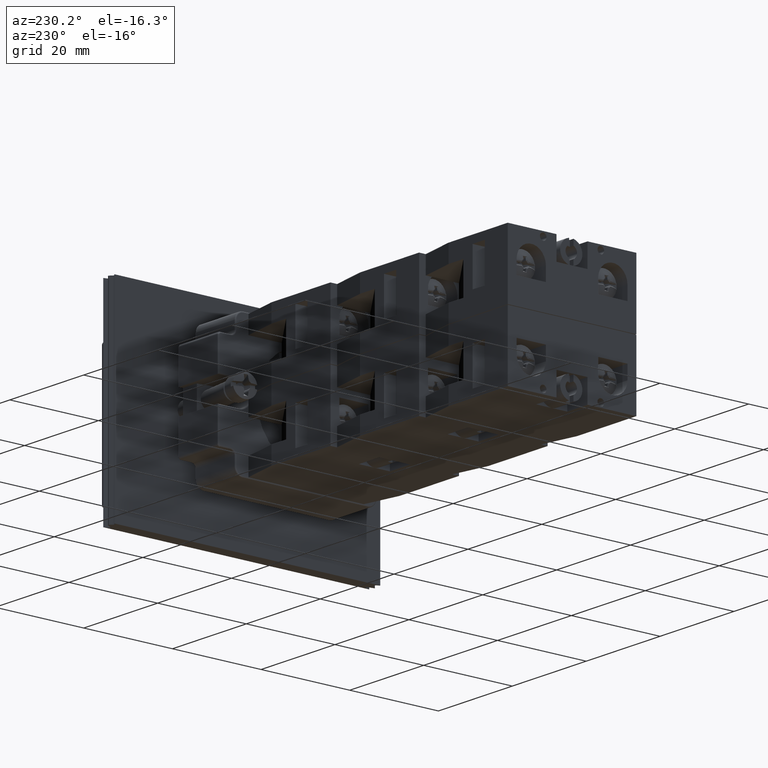
[diagram: clean part render]
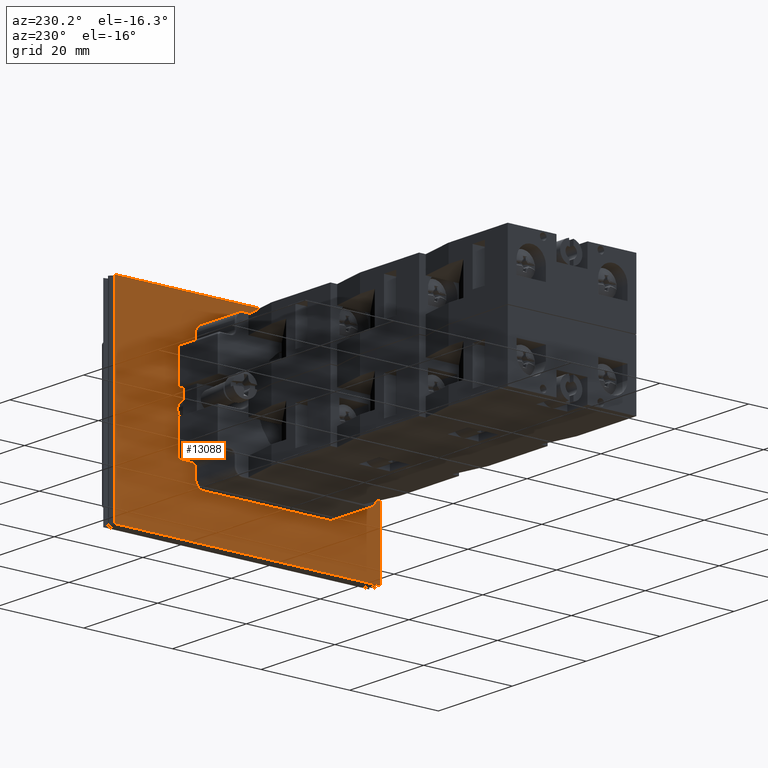
[diagram: same view with one face highlighted and labeled with its STEP entity id]
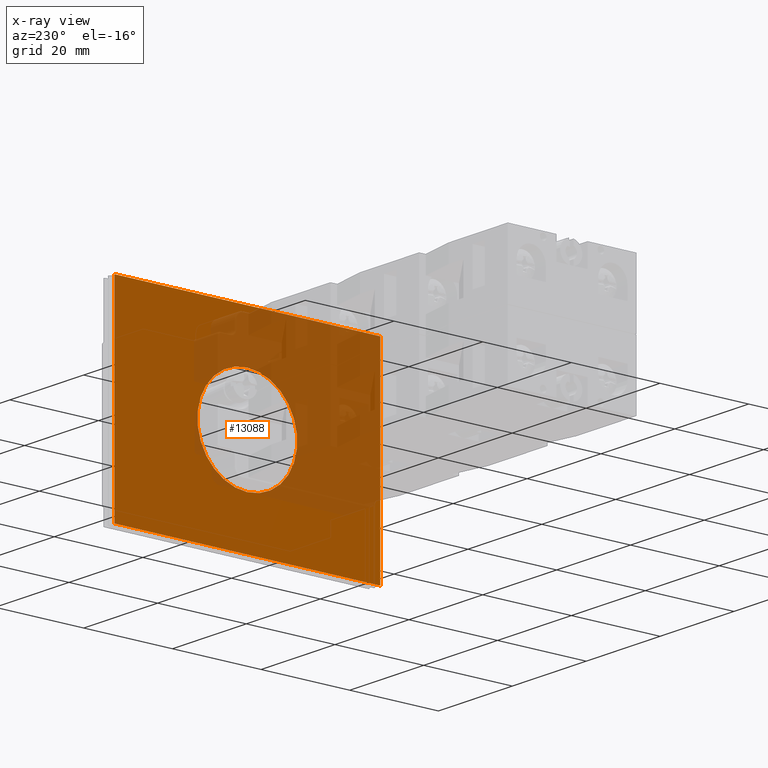
[diagram: x-ray of the same camera — body ghosted, the highlighted face saturated]
A machine part, auxiliary view. The second image highlights one B-rep face of the part: STEP entity #13088.
The next image is the same camera in x-ray: the body ghosted, the highlighted face saturated — about 40% of this face is hidden behind the body in this view.
In plain terms, the highlighted planar face has unit normal (-1, 0, 0).
Its self-contained STEP definition (entity closure, byte-faithful):
#12916=CARTESIAN_POINT('',(-15.704183619849179,-32.725398273954283,11.250000000000000));
#12917=VERTEX_POINT('',#12916);
#12918=CARTESIAN_POINT('',(-15.704183619849179,-32.725398273954283,22.500000000000000));
#12919=DIRECTION('',(1.0,0.0,0.0));
#12920=DIRECTION('',(0.0,0.0,1.0));
#12921=AXIS2_PLACEMENT_3D('',#12918,#12919,#12920);
#12922=CIRCLE('',#12921,11.250000000000000);
#12923=EDGE_CURVE('',#12917,#12917,#12922,.T.);
#12950=CARTESIAN_POINT('',(-15.704183619849179,-2.725398273954287,45.0));
#12951=VERTEX_POINT('',#12950);
#12970=CARTESIAN_POINT('',(-15.704183619849179,-2.725398273954287,0.0));
#12971=VERTEX_POINT('',#12970);
#12980=CARTESIAN_POINT('',(-15.704183619849179,-2.725398273954287,0.0));
#12981=DIRECTION('',(0.0,0.0,1.0));
#12982=VECTOR('',#12981,45.0);
#12983=LINE('',#12980,#12982);
#12984=EDGE_CURVE('',#12971,#12951,#12983,.T.);
#13034=CARTESIAN_POINT('',(-15.704183619849179,-62.725398273954283,45.0));
#13035=VERTEX_POINT('',#13034);
#13044=CARTESIAN_POINT('',(-15.704183619849179,-62.725398273954283,0.0));
#13045=VERTEX_POINT('',#13044);
#13046=CARTESIAN_POINT('',(-15.704183619849179,-62.725398273954283,0.0));
#13047=DIRECTION('',(0.0,0.0,1.0));
#13048=VECTOR('',#13047,45.0);
#13049=LINE('',#13046,#13048);
#13050=EDGE_CURVE('',#13045,#13035,#13049,.T.);
#13064=CARTESIAN_POINT('',(-15.704183619849179,-62.725398273954283,0.0));
#13065=DIRECTION('',(-1.0,0.0,0.0));
#13066=DIRECTION('',(0.0,0.0,1.0));
#13067=AXIS2_PLACEMENT_3D('',#13064,#13065,#13066);
#13068=PLANE('',#13067);
#13069=CARTESIAN_POINT('',(-15.704183619849179,-62.725398273954283,45.0));
#13070=DIRECTION('',(0.0,1.0,0.0));
#13071=VECTOR('',#13070,60.0);
#13072=LINE('',#13069,#13071);
#13073=EDGE_CURVE('',#13035,#12951,#13072,.T.);
#13074=ORIENTED_EDGE('',*,*,#13073,.T.);
#13075=ORIENTED_EDGE('',*,*,#12984,.F.);
#13076=CARTESIAN_POINT('',(-15.704183619849179,-2.725398273954287,0.0));
#13077=DIRECTION('',(0.0,-1.0,0.0));
#13078=VECTOR('',#13077,60.0);
#13079=LINE('',#13076,#13078);
#13080=EDGE_CURVE('',#12971,#13045,#13079,.T.);
#13081=ORIENTED_EDGE('',*,*,#13080,.T.);
#13082=ORIENTED_EDGE('',*,*,#13050,.T.);
#13083=EDGE_LOOP('',(#13074,#13075,#13081,#13082));
#13084=FACE_OUTER_BOUND('',#13083,.T.);
#13085=ORIENTED_EDGE('',*,*,#12923,.T.);
#13086=EDGE_LOOP('',(#13085));
#13087=FACE_BOUND('',#13086,.T.);
#13088=ADVANCED_FACE('',(#13084,#13087),#13068,.T.);